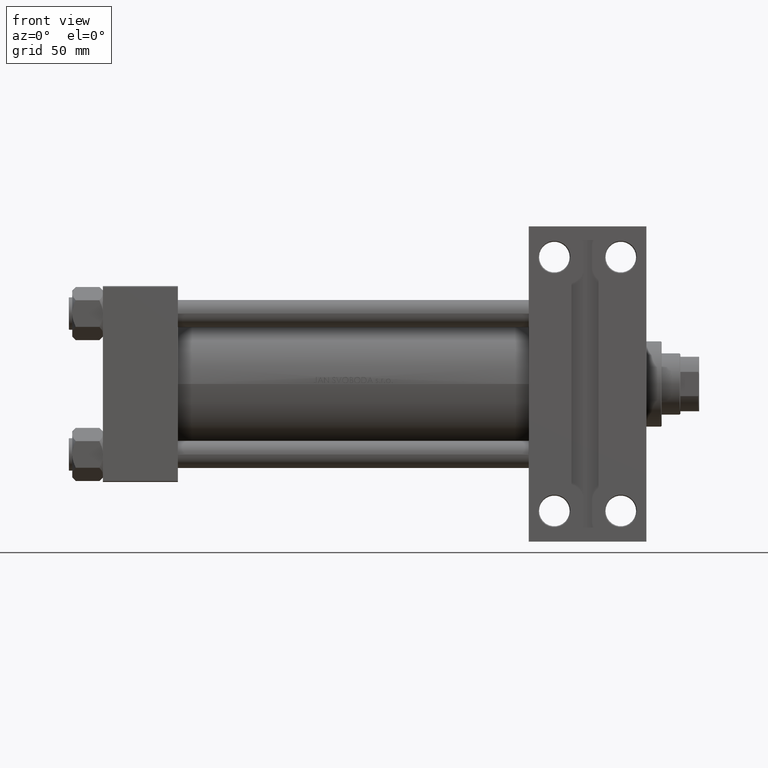
[diagram: clean part render]
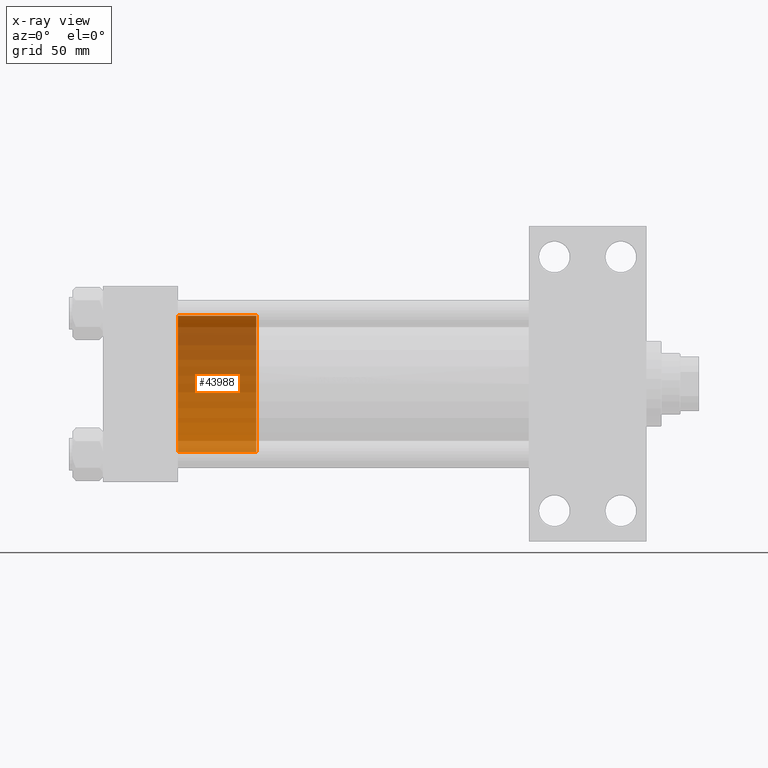
[diagram: x-ray — body ghosted, one internal face saturated and labeled with its STEP entity id]
A machine part, front view, then the same camera in x-ray: the body is ghosted and one INTERNAL B-rep face — a face not visible from any outside direction — is saturated and labeled: STEP entity #43988.
In plain terms, the highlighted cylindrical surface (partial cylindrical patch) has radius 40 mm, axis along (-1, 0, 0).
Its self-contained STEP definition (entity closure, byte-faithful):
#2705 = LINE ( 'NONE', #10730, #42266 ) ;
#3723 = EDGE_CURVE ( 'NONE', #47462, #45528, #14078, .T. ) ;
#3738 = DIRECTION ( 'NONE',  ( 0.000000000000000000, 0.000000000000000000, 1.000000000000000000 ) ) ;
#5253 = DIRECTION ( 'NONE',  ( -0.000000000000000000, -0.000000000000000000, -1.000000000000000000 ) ) ;
#5669 = EDGE_CURVE ( 'NONE', #47462, #39793, #38115, .T. ) ;
#6104 = ORIENTED_EDGE ( 'NONE', *, *, #37435, .F. ) ;
#9339 = ORIENTED_EDGE ( 'NONE', *, *, #5669, .F. ) ;
#10149 = AXIS2_PLACEMENT_3D ( 'NONE', #27740, #42579, #27981 ) ;
#10428 = CARTESIAN_POINT ( 'NONE',  ( -40.00000000000000000, 0.000000000000000000, 46.00000000000000000 ) ) ;
#10730 = CARTESIAN_POINT ( 'NONE',  ( 40.00000000000000000, 4.898587196589413026E-15, 46.00000000000000000 ) ) ;
#12081 = DIRECTION ( 'NONE',  ( -1.000000000000000000, 0.000000000000000000, 0.000000000000000000 ) ) ;
#12097 = DIRECTION ( 'NONE',  ( -0.000000000000000000, -0.000000000000000000, -1.000000000000000000 ) ) ;
#12320 = EDGE_LOOP ( 'NONE', ( #6104, #9339, #37910, #27754 ) ) ;
#14078 = LINE ( 'NONE', #10428, #14750 ) ;
#14750 = VECTOR ( 'NONE', #12097, 1000.000000000000000 ) ;
#14942 = DIRECTION ( 'NONE',  ( 1.000000000000000000, 0.000000000000000000, 0.000000000000000000 ) ) ;
#15723 = CYLINDRICAL_SURFACE ( 'NONE', #39502, 40.00000000000000000 ) ;
#16422 = EDGE_CURVE ( 'NONE', #45528, #42833, #47043, .T. ) ;
#20427 = CARTESIAN_POINT ( 'NONE',  ( -40.00000000000000000, 0.000000000000000000, 0.000000000000000000 ) ) ;
#26650 = FACE_OUTER_BOUND ( 'NONE', #12320, .T. ) ;
#27605 = AXIS2_PLACEMENT_3D ( 'NONE', #29062, #3738, #14942 ) ;
#27740 = CARTESIAN_POINT ( 'NONE',  ( 0.000000000000000000, 0.000000000000000000, 46.00000000000000000 ) ) ;
#27754 = ORIENTED_EDGE ( 'NONE', *, *, #16422, .T. ) ;
#27981 = DIRECTION ( 'NONE',  ( 1.000000000000000000, 0.000000000000000000, 0.000000000000000000 ) ) ;
#28980 = CARTESIAN_POINT ( 'NONE',  ( -40.00000000000000000, 0.000000000000000000, 46.00000000000000000 ) ) ;
#29062 = CARTESIAN_POINT ( 'NONE',  ( 0.000000000000000000, 0.000000000000000000, 0.000000000000000000 ) ) ;
#36512 = DIRECTION ( 'NONE',  ( -0.000000000000000000, -0.000000000000000000, -1.000000000000000000 ) ) ;
#37435 = EDGE_CURVE ( 'NONE', #39793, #42833, #2705, .T. ) ;
#37910 = ORIENTED_EDGE ( 'NONE', *, *, #3723, .T. ) ;
#38115 = CIRCLE ( 'NONE', #10149, 40.00000000000000000 ) ;
#39502 = AXIS2_PLACEMENT_3D ( 'NONE', #41259, #5253, #12081 ) ;
#39793 = VERTEX_POINT ( 'NONE', #44892 ) ;
#41259 = CARTESIAN_POINT ( 'NONE',  ( 0.000000000000000000, 0.000000000000000000, 46.00000000000000000 ) ) ;
#42266 = VECTOR ( 'NONE', #36512, 1000.000000000000000 ) ;
#42579 = DIRECTION ( 'NONE',  ( 0.000000000000000000, 0.000000000000000000, 1.000000000000000000 ) ) ;
#42833 = VERTEX_POINT ( 'NONE', #43060 ) ;
#43060 = CARTESIAN_POINT ( 'NONE',  ( 40.00000000000000000, 4.898587196589413026E-15, 0.000000000000000000 ) ) ;
#43988 = ADVANCED_FACE ( 'NONE', ( #26650 ), #15723, .T. ) ;
#44892 = CARTESIAN_POINT ( 'NONE',  ( 40.00000000000000000, 4.898587196589413026E-15, 46.00000000000000000 ) ) ;
#45528 = VERTEX_POINT ( 'NONE', #20427 ) ;
#47043 = CIRCLE ( 'NONE', #27605, 40.00000000000000000 ) ;
#47462 = VERTEX_POINT ( 'NONE', #28980 ) ;